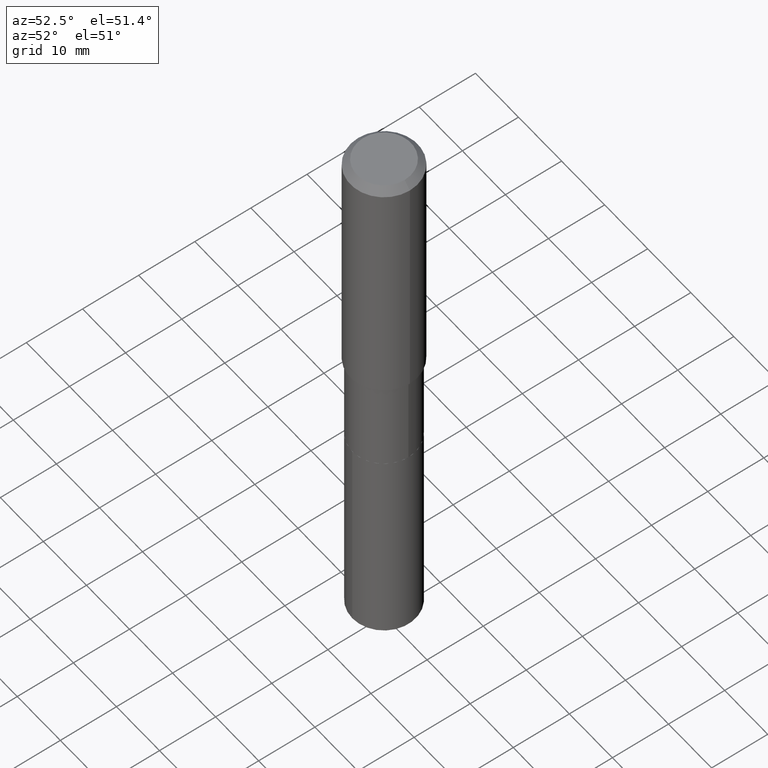
[diagram: clean part render]
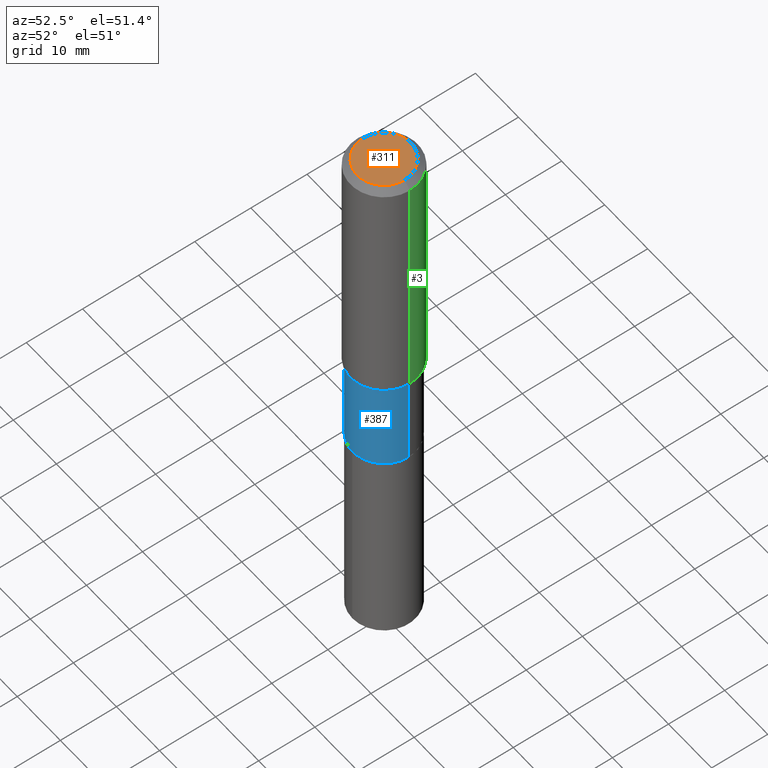
[diagram: same view with three faces highlighted in distinct colors, each labeled with its STEP entity id]
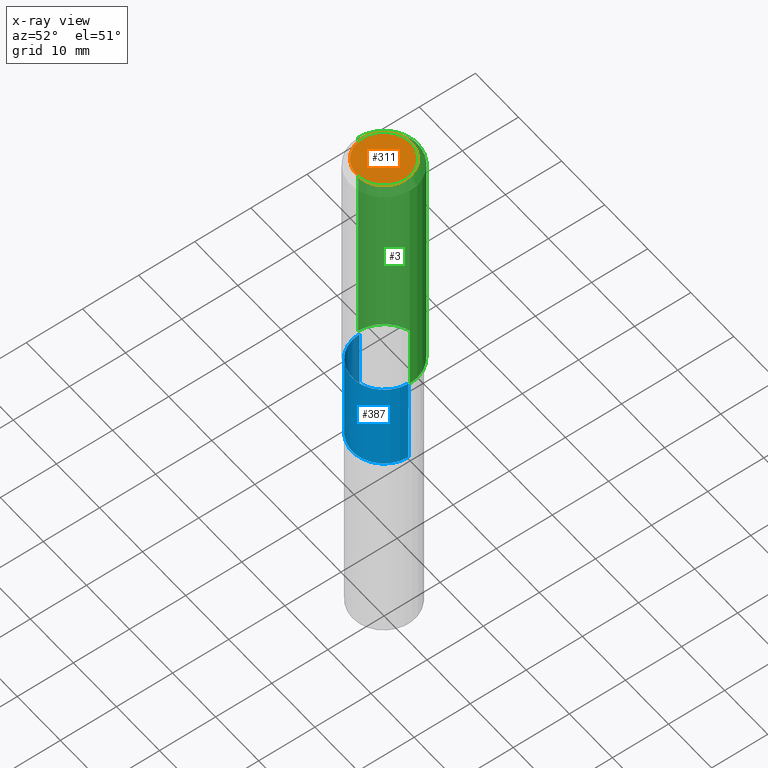
[diagram: x-ray of the same camera — body ghosted, the three highlighted faces saturated]
A machine part, auxiliary view with three faces highlighted in distinct colors.
The next image is the same camera in x-ray (body ghosted, the three faces saturated) — at least one of them is partly hidden behind the body in this view.
Their STEP definitions:

[orange] entity #311 — the highlighted planar face has unit normal (0, -0, -1).
#63 = CARTESIAN_POINT ( 'NONE',  ( -9.427742298522546243E-47, 1.346031739168365344E-32, 3.855188123715862256E-18 ) ) ;
#75 = CARTESIAN_POINT ( 'NONE',  ( -4.713871149261273121E-47, 6.730158695841826722E-33, 1.927594061857931128E-18 ) ) ;
#99 = ORIENTED_EDGE ( 'NONE', *, *, #145, .T. ) ;
#136 = DIRECTION ( 'NONE',  ( 1.000000000000000000, -6.982962677686266711E-15, 4.876185090822587894E-29 ) ) ;
#145 = EDGE_CURVE ( 'NONE', #192, #231, #446, .T. ) ;
#169 = CARTESIAN_POINT ( 'NONE',  ( 0.1889600000000000168, -1.540873453589747738E-15, 3.855188123725863225E-18 ) ) ;
#192 = VERTEX_POINT ( 'NONE', #169 ) ;
#231 = VERTEX_POINT ( 'NONE', #241 ) ;
#241 = CARTESIAN_POINT ( 'NONE',  ( -0.1889600000000000168, 1.401969416799070942E-15, 3.855188123706346622E-18 ) ) ;
#262 = CARTESIAN_POINT ( 'NONE',  ( -9.427742298522546243E-47, 1.346031739168365344E-32, 3.855188123715862256E-18 ) ) ;
#282 = DIRECTION ( 'NONE',  ( -2.445468806185136597E-29, 3.491481338843145583E-15, 1.000000000000000000 ) ) ;
#300 = EDGE_CURVE ( 'NONE', #231, #192, #447, .T. ) ;
#304 = FACE_OUTER_BOUND ( 'NONE', #324, .T. ) ;
#311 = ADVANCED_FACE ( 'NONE', ( #304 ), #481, .F. ) ;
#321 = ORIENTED_EDGE ( 'NONE', *, *, #300, .T. ) ;
#324 = EDGE_LOOP ( 'NONE', ( #321, #99 ) ) ;
#372 = DIRECTION ( 'NONE',  ( -1.000000000000000000, 6.982962677686265922E-15, -4.876176775795935793E-29 ) ) ;
#408 = DIRECTION ( 'NONE',  ( 2.438088387897960049E-29, -3.491481338843145188E-15, -1.000000000000000000 ) ) ;
#446 = CIRCLE ( 'NONE', #488, 0.1889600000000000168 ) ;
#447 = CIRCLE ( 'NONE', #482, 0.1889600000000000168 ) ;
#453 = AXIS2_PLACEMENT_3D ( 'NONE', #75, #408, #372 ) ;
#481 = PLANE ( 'NONE',  #453 ) ;
#482 = AXIS2_PLACEMENT_3D ( 'NONE', #262, #486, #484 ) ;
#484 = DIRECTION ( 'NONE',  ( 1.000000000000000000, -6.982962677686266711E-15, 4.876185090822587894E-29 ) ) ;
#486 = DIRECTION ( 'NONE',  ( -2.445468806185136597E-29, 3.491481338843145583E-15, 1.000000000000000000 ) ) ;
#488 = AXIS2_PLACEMENT_3D ( 'NONE', #63, #282, #136 ) ;

[blue] entity #387 — the highlighted cylindrical surface (partial cylindrical patch) has radius 5.6502 mm, axis along (-0, 0, 1).
#2 = DIRECTION ( 'NONE',  ( -2.445468806185136597E-29, 3.491481338843145583E-15, 1.000000000000000000 ) ) ;
#6 = DIRECTION ( 'NONE',  ( 1.000000000000000000, -6.982962677686262766E-15, 0.000000000000000000 ) ) ;
#9 = AXIS2_PLACEMENT_3D ( 'NONE', #206, #2, #6 ) ;
#28 = VERTEX_POINT ( 'NONE', #339 ) ;
#76 = CARTESIAN_POINT ( 'NONE',  ( -0.2224500000000000088, -5.793406271938379830E-15, -2.440399999999999903 ) ) ;
#82 = DIRECTION ( 'NONE',  ( -2.445468806185136597E-29, 3.491481338843145583E-15, 1.000000000000000000 ) ) ;
#108 = CARTESIAN_POINT ( 'NONE',  ( 0.2224499999999999811, -1.553360047651309885E-15, 1.084705523775805705E-29 ) ) ;
#109 = VECTOR ( 'NONE', #261, 39.37007874015748143 ) ;
#114 = CIRCLE ( 'NONE', #9, 0.2224500000000000088 ) ;
#131 = VERTEX_POINT ( 'NONE', #172 ) ;
#151 = CYLINDRICAL_SURFACE ( 'NONE', #460, 0.2224499999999999811 ) ;
#165 = CARTESIAN_POINT ( 'NONE',  ( -0.2224499999999999811, 1.580602315698342729E-15, -1.094217110827203649E-29 ) ) ;
#170 = EDGE_CURVE ( 'NONE', #419, #131, #296, .T. ) ;
#172 = CARTESIAN_POINT ( 'NONE',  ( 0.2224499999999999256, -7.780766163611943540E-15, -1.783600000000000074 ) ) ;
#202 = ORIENTED_EDGE ( 'NONE', *, *, #170, .T. ) ;
#206 = CARTESIAN_POINT ( 'NONE',  ( 5.967922074614207358E-29, -8.520611059312812251E-15, -2.440399999999999903 ) ) ;
#222 = EDGE_CURVE ( 'NONE', #28, #131, #340, .T. ) ;
#229 = ORIENTED_EDGE ( 'NONE', *, *, #444, .T. ) ;
#243 = CARTESIAN_POINT ( 'NONE',  ( 0.2224500000000000088, -1.007397110696412214E-14, -2.440399999999999903 ) ) ;
#261 = DIRECTION ( 'NONE',  ( -2.445468806185136877E-29, 3.491481338843145188E-15, 1.000000000000000000 ) ) ;
#264 = DIRECTION ( 'NONE',  ( 1.000000000000000000, -6.982962677686266711E-15, 4.876176775795935232E-29 ) ) ;
#269 = CARTESIAN_POINT ( 'NONE',  ( 4.361738162711809273E-29, -6.227406115960634444E-15, -1.783600000000000074 ) ) ;
#296 = LINE ( 'NONE', #108, #109 ) ;
#307 = ORIENTED_EDGE ( 'NONE', *, *, #416, .F. ) ;
#315 = ORIENTED_EDGE ( 'NONE', *, *, #222, .F. ) ;
#318 = VECTOR ( 'NONE', #384, 39.37007874015748143 ) ;
#323 = DIRECTION ( 'NONE',  ( 1.000000000000000000, -6.982962677686265922E-15, 0.000000000000000000 ) ) ;
#339 = CARTESIAN_POINT ( 'NONE',  ( -0.2224499999999999256, -5.793406271938379830E-15, -1.783600000000000074 ) ) ;
#340 = CIRCLE ( 'NONE', #369, 0.2224499999999999256 ) ;
#342 = FACE_OUTER_BOUND ( 'NONE', #458, .T. ) ;
#360 = VERTEX_POINT ( 'NONE', #76 ) ;
#369 = AXIS2_PLACEMENT_3D ( 'NONE', #269, #82, #323 ) ;
#384 = DIRECTION ( 'NONE',  ( -2.445468806185136877E-29, 3.491481338843145188E-15, 1.000000000000000000 ) ) ;
#387 = ADVANCED_FACE ( 'NONE', ( #342 ), #151, .T. ) ;
#413 = CARTESIAN_POINT ( 'NONE',  ( 0.000000000000000000, 0.000000000000000000, 0.000000000000000000 ) ) ;
#415 = LINE ( 'NONE', #165, #318 ) ;
#416 = EDGE_CURVE ( 'NONE', #360, #28, #415, .T. ) ;
#419 = VERTEX_POINT ( 'NONE', #243 ) ;
#444 = EDGE_CURVE ( 'NONE', #360, #419, #114, .T. ) ;
#452 = DIRECTION ( 'NONE',  ( -2.445468806185136597E-29, 3.491481338843145583E-15, 1.000000000000000000 ) ) ;
#458 = EDGE_LOOP ( 'NONE', ( #307, #229, #202, #315 ) ) ;
#460 = AXIS2_PLACEMENT_3D ( 'NONE', #413, #452, #264 ) ;

[green] entity #3 — the highlighted cylindrical surface (partial cylindrical patch) has radius 5.9995 mm, axis along (-0, 0, 1).
#3 = ADVANCED_FACE ( 'NONE', ( #105 ), #303, .T. ) ;
#4 = DIRECTION ( 'NONE',  ( -2.445468806185136597E-29, 3.491481338843145583E-15, 1.000000000000000000 ) ) ;
#15 = CARTESIAN_POINT ( 'NONE',  ( 0.2361999999999999933, -1.814313362916447440E-15, -0.04724000000000028177 ) ) ;
#24 = CARTESIAN_POINT ( 'NONE',  ( 0.2362000000000001043, -1.649375784469496920E-15, 1.151752954443000508E-29 ) ) ;
#40 = VERTEX_POINT ( 'NONE', #180 ) ;
#74 = DIRECTION ( 'NONE',  ( 1.000000000000000000, -6.982962677686266711E-15, 0.000000000000000000 ) ) ;
#79 = DIRECTION ( 'NONE',  ( -2.445468806185136877E-29, 3.491481338843145188E-15, 1.000000000000000000 ) ) ;
#80 = EDGE_CURVE ( 'NONE', #237, #123, #181, .T. ) ;
#105 = FACE_OUTER_BOUND ( 'NONE', #310, .T. ) ;
#106 = DIRECTION ( 'NONE',  ( -2.445468806185136877E-29, 3.491481338843145188E-15, 1.000000000000000000 ) ) ;
#111 = DIRECTION ( 'NONE',  ( -2.445468806185136597E-29, 3.491481338843145583E-15, 1.000000000000000000 ) ) ;
#123 = VERTEX_POINT ( 'NONE', #15 ) ;
#126 = DIRECTION ( 'NONE',  ( 1.000000000000000000, -6.982962677686266711E-15, 0.000000000000000000 ) ) ;
#152 = VERTEX_POINT ( 'NONE', #437 ) ;
#166 = CARTESIAN_POINT ( 'NONE',  ( 0.2362000000000002153, -7.828774032021037649E-15, -1.769849999999999923 ) ) ;
#179 = ORIENTED_EDGE ( 'NONE', *, *, #194, .F. ) ;
#180 = CARTESIAN_POINT ( 'NONE',  ( -0.2362000000000002153, -4.501096305686182363E-15, -1.769849999999999923 ) ) ;
#181 = LINE ( 'NONE', #24, #258 ) ;
#187 = DIRECTION ( 'NONE',  ( -2.445468806185136597E-29, 3.491481338843145583E-15, 1.000000000000000000 ) ) ;
#194 = EDGE_CURVE ( 'NONE', #123, #152, #279, .T. ) ;
#212 = CIRCLE ( 'NONE', #476, 0.2362000000000002153 ) ;
#224 = CARTESIAN_POINT ( 'NONE',  ( 0.000000000000000000, 0.000000000000000000, 0.000000000000000000 ) ) ;
#237 = VERTEX_POINT ( 'NONE', #166 ) ;
#238 = AXIS2_PLACEMENT_3D ( 'NONE', #224, #111, #403 ) ;
#258 = VECTOR ( 'NONE', #106, 39.37007874015748143 ) ;
#278 = ORIENTED_EDGE ( 'NONE', *, *, #376, .T. ) ;
#279 = CIRCLE ( 'NONE', #469, 0.2361999999999999933 ) ;
#303 = CYLINDRICAL_SURFACE ( 'NONE', #238, 0.2362000000000001043 ) ;
#308 = LINE ( 'NONE', #353, #428 ) ;
#310 = EDGE_LOOP ( 'NONE', ( #278, #402, #179, #356 ) ) ;
#316 = CARTESIAN_POINT ( 'NONE',  ( 1.155239464041865506E-30, -1.649375784469511859E-16, -0.04724000000000028177 ) ) ;
#353 = CARTESIAN_POINT ( 'NONE',  ( -0.2362000000000001043, 1.678301941865357380E-15, -1.161852468318209317E-29 ) ) ;
#356 = ORIENTED_EDGE ( 'NONE', *, *, #80, .F. ) ;
#376 = EDGE_CURVE ( 'NONE', #237, #40, #212, .T. ) ;
#402 = ORIENTED_EDGE ( 'NONE', *, *, #442, .T. ) ;
#403 = DIRECTION ( 'NONE',  ( 1.000000000000000000, -6.982962677686266711E-15, 4.876176775795935793E-29 ) ) ;
#411 = CARTESIAN_POINT ( 'NONE',  ( 4.328112966626764519E-29, -6.179398247551541124E-15, -1.769849999999999923 ) ) ;
#428 = VECTOR ( 'NONE', #79, 39.37007874015748143 ) ;
#437 = CARTESIAN_POINT ( 'NONE',  ( -0.2361999999999999933, -1.493865971133888639E-15, -0.04724000000000028177 ) ) ;
#442 = EDGE_CURVE ( 'NONE', #40, #152, #308, .T. ) ;
#469 = AXIS2_PLACEMENT_3D ( 'NONE', #316, #4, #126 ) ;
#476 = AXIS2_PLACEMENT_3D ( 'NONE', #411, #187, #74 ) ;